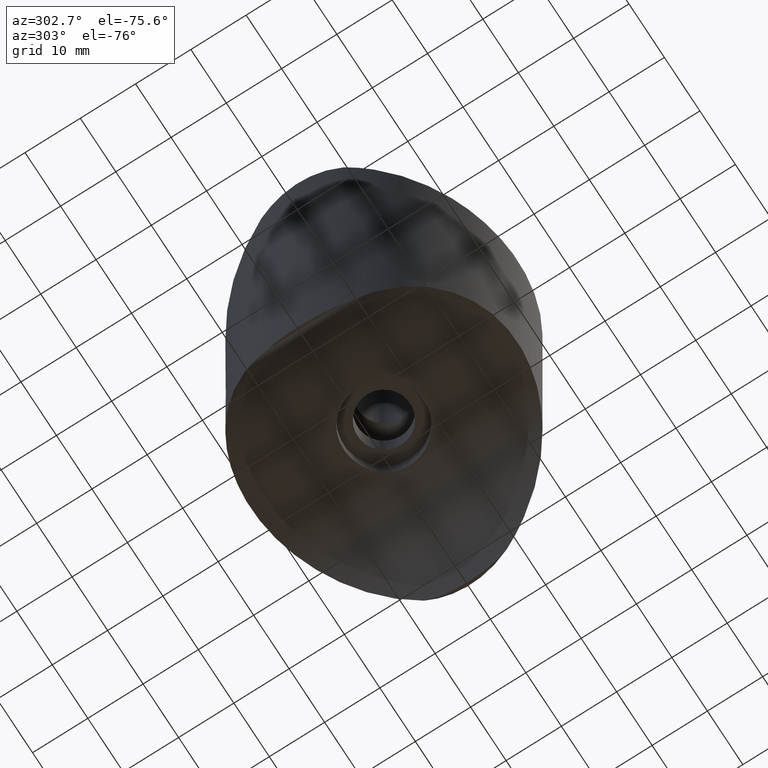
[diagram: clean part render]
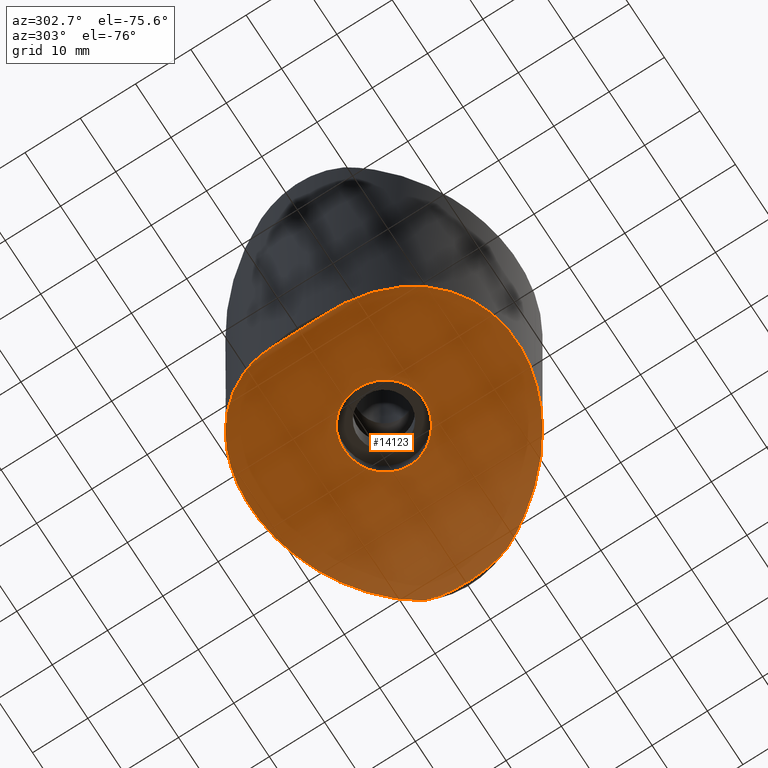
[diagram: same view with one face highlighted and labeled with its STEP entity id]
A machine part, auxiliary view. The second image highlights one B-rep face of the part: STEP entity #14123.
In plain terms, the highlighted cylindrical surface (partial cylindrical patch) has radius 24.15 mm, axis along (0, -1, 0).
Its self-contained STEP definition (entity closure, byte-faithful):
#17 = CARTESIAN_POINT ( 'NONE',  ( 23.58333329076965867, -1.342710219142416728, 43.94811276142461764 ) ) ;
#66 = CARTESIAN_POINT ( 'NONE',  ( 23.40625775316083690, 4.566365360697881570, 43.19922918509129772 ) ) ;
#117 = CARTESIAN_POINT ( 'NONE',  ( 22.95588159927646643, -7.500000000000003553, 41.64999999999992042 ) ) ;
#178 = CARTESIAN_POINT ( 'NONE',  ( 4.430535015015576228, -5.758457711840875071, 25.40649481286317268 ) ) ;
#318 = CARTESIAN_POINT ( 'NONE',  ( 7.202421268336046012, -0.9553088186341823773, 26.09881600218519537 ) ) ;
#330 = CARTESIAN_POINT ( 'NONE',  ( 22.95588159927646643, 7.499999999999992895, 41.64999999999992042 ) ) ;
#335 = CARTESIAN_POINT ( 'NONE',  ( -23.07944902034609314, 6.955721682396822203, 42.02821321168020319 ) ) ;
#358 = CARTESIAN_POINT ( 'NONE',  ( -6.512588624488569344, -3.220621262753788905, 25.89393799316449574 ) ) ;
#399 = CARTESIAN_POINT ( 'NONE',  ( -7.190937394407026062, -0.9539719690186876377, 26.09542276474027744 ) ) ;
#421 = CARTESIAN_POINT ( 'NONE',  ( -23.50396153903346175, -3.295082903082596992, 43.59767010430701362 ) ) ;
#430 =( BOUNDED_CURVE ( )  B_SPLINE_CURVE ( 3, ( #9664, #899, #3066, #3152 ),
 .UNSPECIFIED., .F., .T. ) 
 B_SPLINE_CURVE_WITH_KNOTS ( ( 4, 4 ),
 ( 5.028170040954742959, 7.538200573404429505 ),
 .UNSPECIFIED. ) 
 CURVE ( )  GEOMETRIC_REPRESENTATION_ITEM ( )  RATIONAL_B_SPLINE_CURVE ( ( 1.000000000000000000, 0.5403726708074536589, 0.5403726708074536589, 1.000000000000000000 ) ) 
 REPRESENTATION_ITEM ( '' )  );
#461 = CARTESIAN_POINT ( 'NONE',  ( -0.9548036046264891663, -7.202553625920775637, 25.01436544652682059 ) ) ;
#507 = CARTESIAN_POINT ( 'NONE',  ( -6.514537617548416648, 3.216706062516767606, 25.89448552507773371 ) ) ;
#549 = CARTESIAN_POINT ( 'NONE',  ( -6.287189625676639082, 3.640949459774325714, 25.83118226600541689 ) ) ;
#552 = FACE_BOUND ( 'NONE', #778, .T. ) ;
#778 = EDGE_LOOP ( 'NONE', ( #11084 ) ) ;
#899 = CARTESIAN_POINT ( 'NONE',  ( -14.16052466468775606, 34.42068965517238865, 14.72931034482758328 ) ) ;
#1056 = CARTESIAN_POINT ( 'NONE',  ( -22.95588159927646643, -7.500000000000004441, 41.64999999999990621 ) ) ;
#1107 = CARTESIAN_POINT ( 'NONE',  ( 23.59454307295505160, 0.3254296317553684870, 44.00023910845311548 ) ) ;
#1201 = CARTESIAN_POINT ( 'NONE',  ( 23.53819279198610204, 2.648538919427390947, 43.74753363082991342 ) ) ;
#1215 = CARTESIAN_POINT ( 'NONE',  ( 7.250000000000000000, -0.4819777699687035066, 26.11394130932981739 ) ) ;
#1271 = CARTESIAN_POINT ( 'NONE',  ( 7.063023397359136091, -1.653011571266927326, 26.05587597579672021 ) ) ;
#1397 = CARTESIAN_POINT ( 'NONE',  ( 6.511077239207353706, -3.223923639002036268, 25.89350832831127747 ) ) ;
#1413 = AXIS2_PLACEMENT_3D ( 'NONE', #4754, #6969, #10517 ) ;
#1455 = CARTESIAN_POINT ( 'NONE',  ( -0.4825929110061852878, 7.237878246713412622, 25.00364694169958923 ) ) ;
#1471 = CARTESIAN_POINT ( 'NONE',  ( -23.59454307295504805, -0.3254296317553753148, 44.00023910845312258 ) ) ;
#1504 = CARTESIAN_POINT ( 'NONE',  ( 2.567971062528672022, -6.784076747656212270, 25.13591835332825752 ) ) ;
#1555 = CARTESIAN_POINT ( 'NONE',  ( -3.635229885871468447, -6.277233158966987858, 25.27423761599827756 ) ) ;
#1596 = CARTESIAN_POINT ( 'NONE',  ( 0.4807107271748687904, -7.249688256254142260, 25.00009358764886613 ) ) ;
#1650 = CARTESIAN_POINT ( 'NONE',  ( -6.875825524705429181, -2.347176018906343309, 25.99873104965076820 ) ) ;
#1925 = VERTEX_POINT ( 'NONE', #330 ) ;
#2313 = CARTESIAN_POINT ( 'NONE',  ( 22.95588159927646643, 7.499999999999992895, 41.64999999999992042 ) ) ;
#2331 = CARTESIAN_POINT ( 'NONE',  ( 6.866026250664985398, -2.340340431499605245, 25.99648069941249062 ) ) ;
#2414 = CARTESIAN_POINT ( 'NONE',  ( 7.250000000000000000, -2.439454888092384977E-16, 26.11394130932981383 ) ) ;
#2514 = CARTESIAN_POINT ( 'NONE',  ( 6.288279808588537634, -3.639174042621823091, 25.83147146888209633 ) ) ;
#2518 = EDGE_CURVE ( 'NONE', #3519, #11816, #6309, .T. ) ;
#2562 = CARTESIAN_POINT ( 'NONE',  ( 0.9484403245173415042, 7.203466903221690920, 25.01409243754145706 ) ) ;
#2576 = CARTESIAN_POINT ( 'NONE',  ( -22.95588159927646643, -7.500000000000004441, 41.64999999999990621 ) ) ;
#2603 = CARTESIAN_POINT ( 'NONE',  ( -1.891178497224035526, 7.015027855281247504, 25.06966207377710631 ) ) ;
#2664 = CARTESIAN_POINT ( 'NONE',  ( -4.785424623598828475, 5.451431822611119138, 25.47814250926537483 ) ) ;
#2684 = CARTESIAN_POINT ( 'NONE',  ( -23.49949931771601896, 3.305007554286290894, 43.58204950070740580 ) ) ;
#2715 = CARTESIAN_POINT ( 'NONE',  ( -1.194082458193149510, 7.154916845269344350, 25.02841527240796893 ) ) ;
#2760 = CARTESIAN_POINT ( 'NONE',  ( -3.001560036107230989, -6.603793025683310169, 25.18622827745657489 ) ) ;
#2809 = CARTESIAN_POINT ( 'NONE',  ( 7.202398825524176651, 0.9560683961244266227, 26.09880741137586568 ) ) ;
#3066 = CARTESIAN_POINT ( 'NONE',  ( 14.16052466468774718, 34.42068965517238865, 14.72931034482759038 ) ) ;
#3152 = CARTESIAN_POINT ( 'NONE',  ( 22.95588159927646643, 7.499999999999992895, 41.64999999999992042 ) ) ;
#3325 = CARTESIAN_POINT ( 'NONE',  ( 23.58059663413400386, 1.331354551583074253, 43.93668628495053952 ) ) ;
#3374 = ORIENTED_EDGE ( 'NONE', *, *, #2518, .T. ) ;
#3519 = VERTEX_POINT ( 'NONE', #8809 ) ;
#3639 = CARTESIAN_POINT ( 'NONE',  ( -23.34095896364554079, 5.203425376635857802, 42.94409360062363845 ) ) ;
#3673 = CARTESIAN_POINT ( 'NONE',  ( 4.792431585243522640, 5.460403369030796483, 25.47784684677939637 ) ) ;
#3729 = CARTESIAN_POINT ( 'NONE',  ( 5.750336783304169863, 4.421788825645389664, 25.69408307455895013 ) ) ;
#3780 = CARTESIAN_POINT ( 'NONE',  ( 0.9530173313449559203, -7.202959378916133026, 25.01424629614222539 ) ) ;
#3794 = CARTESIAN_POINT ( 'NONE',  ( -23.59438424472909901, 0.6794122471350264592, 43.99951144466633224 ) ) ;
#3819 = CARTESIAN_POINT ( 'NONE',  ( -0.2409192066514672104, 7.249934597112835277, 25.00001963440638164 ) ) ;
#3872 = CARTESIAN_POINT ( 'NONE',  ( -4.420085787299019131, 5.751629280268367062, 25.40721230515017126 ) ) ;
#4496 = CARTESIAN_POINT ( 'NONE',  ( 23.50396153903347241, 3.295082903082588111, 43.59767010430701362 ) ) ;
#4739 = CARTESIAN_POINT ( 'NONE',  ( 5.893845718678315748, -4.228589636074417513, 25.72984806632681654 ) ) ;
#4754 = CARTESIAN_POINT ( 'NONE',  ( 0.000000000000000000, -24.14999999999999858, 49.14999999999991331 ) ) ;
#4760 = CARTESIAN_POINT ( 'NONE',  ( -23.40425869456801422, 4.588300385915863977, 43.19129710098010122 ) ) ;
#4790 = CARTESIAN_POINT ( 'NONE',  ( -4.783167365172773522, -5.453412311661145928, 25.47768585661125229 ) ) ;
#4836 = CARTESIAN_POINT ( 'NONE',  ( 0.4759095739806273873, 7.250129997702255302, 24.99996097377592719 ) ) ;
#4883 = CARTESIAN_POINT ( 'NONE',  ( -7.015941670273369013, 1.889294121607459465, 26.04137131818994177 ) ) ;
#4904 = CARTESIAN_POINT ( 'NONE',  ( -23.57219652307005475, -1.662667037416008853, 43.89864619612763619 ) ) ;
#4939 = CARTESIAN_POINT ( 'NONE',  ( 3.219168441476830456, 6.513313868482390134, 25.21147741431782308 ) ) ;
#4987 = CARTESIAN_POINT ( 'NONE',  ( -4.417710530253415868, -5.753453706698206105, 25.40676979395126622 ) ) ;
#5514 = CARTESIAN_POINT ( 'NONE',  ( 23.40425869456801777, -4.588300385915871971, 43.19129710098010833 ) ) ;
#5551 = CARTESIAN_POINT ( 'NONE',  ( 23.53485153924235718, -2.654742722643820496, 43.73342322386821479 ) ) ;
#5607 = CARTESIAN_POINT ( 'NONE',  ( 23.57219652307005120, 1.662667037416001525, 43.89864619612764329 ) ) ;
#5666 = CARTESIAN_POINT ( 'NONE',  ( 5.450528033875959188, -4.786478692552381453, 25.62260825477079607 ) ) ;
#5676 = VERTEX_POINT ( 'NONE', #9301 ) ;
#5697 = CARTESIAN_POINT ( 'NONE',  ( 23.49949931771602607, -3.305007554286295779, 43.58204950070740580 ) ) ;
#5731 =( BOUNDED_CURVE ( )  B_SPLINE_CURVE ( 3, ( #13941, #13034, #7653, #1056 ),
 .UNSPECIFIED., .F., .T. ) 
 B_SPLINE_CURVE_WITH_KNOTS ( ( 4, 4 ),
 ( 5.028170040954742959, 7.538200573404429505 ),
 .UNSPECIFIED. ) 
 CURVE ( )  GEOMETRIC_REPRESENTATION_ITEM ( )  RATIONAL_B_SPLINE_CURVE ( ( 1.000000000000000000, 0.5403726708074536589, 0.5403726708074536589, 1.000000000000000000 ) ) 
 REPRESENTATION_ITEM ( '' )  );
#5850 = CARTESIAN_POINT ( 'NONE',  ( -7.249897003482068669, -0.2405618492822055587, 26.11390889385934955 ) ) ;
#5892 = CARTESIAN_POINT ( 'NONE',  ( -3.217946500129021281, -6.501028593805384226, 25.21442509437571644 ) ) ;
#5947 = CARTESIAN_POINT ( 'NONE',  ( 5.892937365032689279, 4.229858171171280823, 25.72961908978066603 ) ) ;
#5968 = CARTESIAN_POINT ( 'NONE',  ( -23.53819279198608783, -2.648538919427400717, 43.74753363082990631 ) ) ;
#5999 = CARTESIAN_POINT ( 'NONE',  ( -7.203772017884855217, 0.9479127137863905261, 26.09923372664603036 ) ) ;
#6045 = CARTESIAN_POINT ( 'NONE',  ( -3.837279822448169675, -6.155745072440452326, 25.30598296000923852 ) ) ;
#6063 = CARTESIAN_POINT ( 'NONE',  ( -23.54919858853801173, 2.327953500225913075, 43.79645623682832678 ) ) ;
#6146 = CARTESIAN_POINT ( 'NONE',  ( 7.250000000000000000, 0.4819777699686995653, 26.11394130932981028 ) ) ;
#6309 = B_SPLINE_CURVE_WITH_KNOTS ( 'NONE', 3,
 ( #10330, #335, #11328, #3639, #4760, #7023, #2684, #6925, #6063, #8065, #3794, #1471, #11424, #11475, #4904, #5968, #421, #12626, #7113, #9194, #10233, #2576 ),
 .UNSPECIFIED., .F., .F.,
 ( 4, 2, 2, 2, 2, 2, 2, 2, 2, 2, 4 ),
 ( 1.044441840201302536E-17, 0.001993106903680222797, 0.003986213807360435186, 0.004982767259200541164, 0.005979320711040648009, 0.007972427614720859965, 0.008968981066560965942, 0.009965534518401071920, 0.01195864142208128734, 0.01395174832576150450, 0.01594485522944171993 ),
 .UNSPECIFIED. ) ;
#6710 = CARTESIAN_POINT ( 'NONE',  ( 23.17853233189731910, -6.387139284601380140, 42.36256465816462224 ) ) ;
#6769 = CARTESIAN_POINT ( 'NONE',  ( 4.793714833284053789, -5.459267129612251246, 25.47810887501599098 ) ) ;
#6809 = CARTESIAN_POINT ( 'NONE',  ( 23.59438424472909190, -0.6794122471350315662, 43.99951144466631803 ) ) ;
#6925 = CARTESIAN_POINT ( 'NONE',  ( -23.53485153924234297, 2.654742722643814723, 43.73342322386820058 ) ) ;
#6956 = CARTESIAN_POINT ( 'NONE',  ( -4.228520255933796435, -5.893855298342534077, 25.37224818271720039 ) ) ;
#6969 = DIRECTION ( 'NONE',  ( 0.000000000000000000, 1.000000000000000000, 0.000000000000000000 ) ) ;
#7005 = CARTESIAN_POINT ( 'NONE',  ( -6.284815106235166482, -3.644957662798241405, 25.83054428248389911 ) ) ;
#7023 = CARTESIAN_POINT ( 'NONE',  ( -23.47838276607514629, 3.629853885291828064, 43.49325323088182671 ) ) ;
#7050 = CARTESIAN_POINT ( 'NONE',  ( -4.962435920999243244, 5.290811488851245414, 25.51472985797487780 ) ) ;
#7095 = CARTESIAN_POINT ( 'NONE',  ( -2.340435523965494369, -6.878418529272460447, 25.10958126736854013 ) ) ;
#7097 = CYLINDRICAL_SURFACE ( 'NONE', #1413, 24.14999999999996305 ) ;
#7113 = CARTESIAN_POINT ( 'NONE',  ( -23.34223474764486994, -5.193047090726338411, 42.94880742668343032 ) ) ;
#7146 = CARTESIAN_POINT ( 'NONE',  ( -4.231050712837525651, 5.892028891758611664, 25.37270058855551014 ) ) ;
#7196 = CARTESIAN_POINT ( 'NONE',  ( 7.015820218399770880, 1.888619147174180668, 26.04133722469330792 ) ) ;
#7236 = CARTESIAN_POINT ( 'NONE',  ( 6.874400171282863958, 2.351453121312654382, 25.99830351633707437 ) ) ;
#7653 = CARTESIAN_POINT ( 'NONE',  ( -14.16052466468774718, -34.42068965517239576, 14.72931034482759038 ) ) ;
#7707 = CARTESIAN_POINT ( 'NONE',  ( 23.07944902034609669, -6.955721682396822203, 42.02821321168022450 ) ) ;
#7711 = EDGE_CURVE ( 'NONE', #5676, #1925, #8438, .T. ) ;
#7803 = CARTESIAN_POINT ( 'NONE',  ( 23.59177974707781544, 0.6632460867595895149, 43.98752909174065451 ) ) ;
#8001 = CARTESIAN_POINT ( 'NONE',  ( 7.005132268049746536, -1.883515786305131945, 26.03818712466226515 ) ) ;
#8043 = CARTESIAN_POINT ( 'NONE',  ( -2.344622196554733140, 6.877094153063542770, 25.10996664923453991 ) ) ;
#8065 = CARTESIAN_POINT ( 'NONE',  ( -23.58333329076966933, 1.342710219142410955, 43.94811276142463186 ) ) ;
#8095 = CARTESIAN_POINT ( 'NONE',  ( 2.340393982012677565, 6.866020510362850438, 25.11257522175128187 ) ) ;
#8147 = CARTESIAN_POINT ( 'NONE',  ( -3.228525279233149803, 6.509093773792971938, 25.21264255871492566 ) ) ;
#8206 = CARTESIAN_POINT ( 'NONE',  ( -5.463935351666973084, 4.788709261913873583, 25.62373870971198997 ) ) ;
#8258 = CARTESIAN_POINT ( 'NONE',  ( 3.635904837538693091, 6.290488802313171313, 25.27188523307743395 ) ) ;
#8438 = B_SPLINE_CURVE_WITH_KNOTS ( 'NONE', 3,
 ( #117, #7707, #6710, #12117, #5514, #9928, #5697, #5551, #13222, #17, #6809, #1107, #7803, #3325, #5607, #1201, #4496, #66, #9975, #12165, #8935, #2313 ),
 .UNSPECIFIED., .F., .F.,
 ( 4, 2, 2, 2, 2, 2, 2, 2, 2, 2, 4 ),
 ( 6.071532165918824830E-18, 0.001993106903680219328, 0.003986213807360432584, 0.004982767259200537695, 0.005979320711040641938, 0.007972427614720851291, 0.008968981066560955534, 0.009965534518401059777, 0.01195864142208127173, 0.01395174832576148369, 0.01594485522944169564 ),
 .UNSPECIFIED. ) ;
#8726 = EDGE_CURVE ( 'NONE', #13787, #13787, #13837, .T. ) ;
#8779 = ORIENTED_EDGE ( 'NONE', *, *, #10758, .F. ) ;
#8809 = CARTESIAN_POINT ( 'NONE',  ( -22.95588159927646643, 7.499999999999992895, 41.64999999999992042 ) ) ;
#8935 = CARTESIAN_POINT ( 'NONE',  ( 23.07943559808701295, 6.955780803518929467, 42.02817212904151489 ) ) ;
#8994 = CARTESIAN_POINT ( 'NONE',  ( 3.638877831533077423, -6.288723548186536227, 25.27234837304871107 ) ) ;
#9171 = CARTESIAN_POINT ( 'NONE',  ( 5.291107627380776002, 4.962046597767259648, 25.58613754225192949 ) ) ;
#9194 = CARTESIAN_POINT ( 'NONE',  ( -23.17893035629539256, -6.385308370221885355, 42.36384498530100018 ) ) ;
#9225 = CARTESIAN_POINT ( 'NONE',  ( -5.762065438270877138, 4.425366452954059504, 25.69590407230412410 ) ) ;
#9272 = CARTESIAN_POINT ( 'NONE',  ( 1.882875519516441054, 7.005316653640304203, 25.07241677952266556 ) ) ;
#9301 = CARTESIAN_POINT ( 'NONE',  ( 22.95588159927646643, -7.500000000000003553, 41.64999999999992042 ) ) ;
#9318 = CARTESIAN_POINT ( 'NONE',  ( -3.645004378345037654, 6.284713316097249702, 25.27336973469327219 ) ) ;
#9363 = CARTESIAN_POINT ( 'NONE',  ( 2.345293780030222042, -6.864311368676270675, 25.11306306487142592 ) ) ;
#9420 = CARTESIAN_POINT ( 'NONE',  ( 6.510153906180983441, 3.225617090496231132, 25.89325207806515650 ) ) ;
#9508 = FACE_OUTER_BOUND ( 'NONE', #10260, .T. ) ;
#9664 = CARTESIAN_POINT ( 'NONE',  ( -22.95588159927646643, 7.499999999999992895, 41.64999999999992042 ) ) ;
#9928 = CARTESIAN_POINT ( 'NONE',  ( 23.47838276607514274, -3.629853885291836946, 43.49325323088181960 ) ) ;
#9975 = CARTESIAN_POINT ( 'NONE',  ( 23.34223474764486994, 5.193047090726327752, 42.94880742668341611 ) ) ;
#10036 = CARTESIAN_POINT ( 'NONE',  ( 6.784652654092800717, -2.566576703426470374, 25.97242471081417392 ) ) ;
#10199 = ORIENTED_EDGE ( 'NONE', *, *, #11292, .F. ) ;
#10233 = CARTESIAN_POINT ( 'NONE',  ( -23.07943559808701650, -6.955780803518926803, 42.02817212904152910 ) ) ;
#10260 = EDGE_LOOP ( 'NONE', ( #10199, #11055, #8779, #3374 ) ) ;
#10267 = CARTESIAN_POINT ( 'NONE',  ( -7.238159395298985110, -0.4782172060890964582, 26.11020484737152358 ) ) ;
#10317 = CARTESIAN_POINT ( 'NONE',  ( 5.449496473532432717, 4.787648454615376359, 25.62236943252527865 ) ) ;
#10330 = CARTESIAN_POINT ( 'NONE',  ( -22.95588159927646643, 7.499999999999992895, 41.64999999999992042 ) ) ;
#10355 = CARTESIAN_POINT ( 'NONE',  ( -5.461977603441234841, -4.790947819237310057, 25.62328152599148723 ) ) ;
#10413 = CARTESIAN_POINT ( 'NONE',  ( -0.9588759266909271384, 7.190294457754374591, 25.01786750220651712 ) ) ;
#10462 = CARTESIAN_POINT ( 'NONE',  ( -1.887006463236362341, -7.016240821506660730, 25.06930831911341429 ) ) ;
#10517 = DIRECTION ( 'NONE',  ( 0.000000000000000000, 0.000000000000000000, 1.000000000000000000 ) ) ;
#10758 = EDGE_CURVE ( 'NONE', #3519, #1925, #430, .T. ) ;
#11055 = ORIENTED_EDGE ( 'NONE', *, *, #7711, .T. ) ;
#11084 = ORIENTED_EDGE ( 'NONE', *, *, #8726, .T. ) ;
#11292 = EDGE_CURVE ( 'NONE', #5676, #11816, #5731, .T. ) ;
#11328 = CARTESIAN_POINT ( 'NONE',  ( -23.17853233189732620, 6.387139284601377476, 42.36256465816462224 ) ) ;
#11353 = CARTESIAN_POINT ( 'NONE',  ( 1.655916322836515020, -7.062402749334218299, 25.05569510540824041 ) ) ;
#11405 = CARTESIAN_POINT ( 'NONE',  ( -7.155131508516591410, -1.193129468298080420, 26.08424595322784256 ) ) ;
#11424 = CARTESIAN_POINT ( 'NONE',  ( -23.59177974707781544, -0.6632460867595972864, 43.98752909174065451 ) ) ;
#11455 = CARTESIAN_POINT ( 'NONE',  ( -0.4712609527894532357, -7.250308664496026623, 24.99990733676336419 ) ) ;
#11475 = CARTESIAN_POINT ( 'NONE',  ( -23.58059663413400742, -1.331354551583082912, 43.93668628495053241 ) ) ;
#11506 = CARTESIAN_POINT ( 'NONE',  ( 1.649311365242462246, 7.063923530108977111, 25.05524869917385189 ) ) ;
#11538 = CARTESIAN_POINT ( 'NONE',  ( 2.563886665923558184, 6.785641894124001539, 25.13547653139343296 ) ) ;
#11816 = VERTEX_POINT ( 'NONE', #14220 ) ;
#12117 = CARTESIAN_POINT ( 'NONE',  ( 23.34095896364553724, -5.203425376635859578, 42.94409360062364556 ) ) ;
#12128 = CARTESIAN_POINT ( 'NONE',  ( 7.250000000000000000, 0.000000000000000000, 26.11394130932980673 ) ) ;
#12165 = CARTESIAN_POINT ( 'NONE',  ( 23.17893035629539966, 6.385308370221875585, 42.36384498530102860 ) ) ;
#12320 = CARTESIAN_POINT ( 'NONE',  ( 5.751404433098318059, -4.420405091081891058, 25.69434470690524464 ) ) ;
#12451 = CARTESIAN_POINT ( 'NONE',  ( -5.760028374301390919, -4.427944264599118718, 25.69540580167717536 ) ) ;
#12506 = CARTESIAN_POINT ( 'NONE',  ( -7.014186066537646980, -1.895139349267401352, 26.04083817129248857 ) ) ;
#12554 = CARTESIAN_POINT ( 'NONE',  ( -6.877376070853801870, 2.342668701104161144, 25.99919327012945658 ) ) ;
#12602 = CARTESIAN_POINT ( 'NONE',  ( 1.889932500870390664, -7.003379799992325516, 25.07297993355176757 ) ) ;
#12626 = CARTESIAN_POINT ( 'NONE',  ( -23.40625775316082624, -4.566365360697895781, 43.19922918509129772 ) ) ;
#12658 = CARTESIAN_POINT ( 'NONE',  ( 7.250000000000000000, -2.439454888092384977E-16, 26.11394130932981383 ) ) ;
#13034 = CARTESIAN_POINT ( 'NONE',  ( 14.16052466468775606, -34.42068965517239576, 14.72931034482758328 ) ) ;
#13222 = CARTESIAN_POINT ( 'NONE',  ( 23.54919858853801529, -2.327953500225917960, 43.79645623682832678 ) ) ;
#13340 = CARTESIAN_POINT ( 'NONE',  ( 5.292161427922056127, -4.960920004862209076, 25.58637474294749481 ) ) ;
#13528 = CARTESIAN_POINT ( 'NONE',  ( 4.428777119038286969, 5.759859945306616602, 25.40615654448828664 ) ) ;
#13574 = CARTESIAN_POINT ( 'NONE',  ( 3.221480690049995932, -6.512085145936922004, 25.21181015599492170 ) ) ;
#13620 = CARTESIAN_POINT ( 'NONE',  ( 6.287576360483353000, 3.640402073505394132, 25.83128016843685160 ) ) ;
#13672 = CARTESIAN_POINT ( 'NONE',  ( -7.250203973369101718, 0.4717505720782086964, 26.11400550463308434 ) ) ;
#13717 = CARTESIAN_POINT ( 'NONE',  ( -4.960207737149439744, -5.292901783625874934, 25.51426149708323976 ) ) ;
#13787 = VERTEX_POINT ( 'NONE', #12128 ) ;
#13837 = B_SPLINE_CURVE_WITH_KNOTS ( 'NONE', 3,
 ( #2414, #1215, #318, #1271, #8001, #2331, #10036, #1397, #2514, #4739, #12320, #5666, #13340, #6769, #178, #8994, #13574, #1504, #9363, #12602, #11353, #3780, #1596, #11455, #461, #10462, #7095, #2760, #5892, #1555, #6045, #6956, #4987, #4790, #13717, #10355, #12451, #7005, #358, #1650, #12506, #11405, #399, #10267, #5850, #13672, #5999, #4883, #12554, #507, #549, #9225, #8206, #7050, #2664, #3872, #7146, #9318, #8147, #8043, #2603, #2715, #10413, #1455, #3819, #4836, #2562, #11506, #9272, #8095, #11538, #4939, #8258, #13528, #3673, #9171, #10317, #3729, #5947, #13620, #9420, #7236, #7196, #2809, #6146, #12658 ),
 .UNSPECIFIED., .T., .F.,
 ( 4, 2, 2, 2, 2, 2, 2, 2, 2, 2, 2, 2, 2, 2, 2, 2, 2, 2, 2, 2, 2, 2, 2, 2, 2, 2, 2, 2, 2, 2, 2, 2, 2, 2, 2, 2, 2, 2, 2, 2, 2, 2, 4 ),
 ( 0.000000000000000000, 0.001424720433073834152, 0.002137080649610751011, 0.002849440866147667870, 0.004274161299221504624, 0.004986521515758423652, 0.005698881732295343547, 0.007123602165369184204, 0.008548322598443023126, 0.009260682814979942154, 0.009973043031516859447, 0.01139776346459069750, 0.01282248389766453209, 0.01424720433073837014, 0.01495956454727528917, 0.01567192476381220820, 0.01638428498034912723, 0.01709664519688604625, 0.01852136562995987737, 0.01994608606303370849, 0.02137080649610754307, 0.02208316671264445863, 0.02279552692918137419, 0.02422024736225520530, 0.02564496779532903989, 0.02706968822840287794, 0.02849440866147671253, 0.02920676887801362809, 0.02991912909455054365, 0.03134384952762437476, 0.03276856996069819894, 0.03348093017723511450, 0.03419329039377203699, 0.03561801082684586811, 0.03633037104338278367, 0.03704273125991969923, 0.03846745169299353034, 0.03989217212606735452, 0.04060453234260427008, 0.04131689255914117870, 0.04274161299221501675, 0.04416633342528884093, 0.04559105385836266511 ),
 .UNSPECIFIED. ) ;
#13941 = CARTESIAN_POINT ( 'NONE',  ( 22.95588159927646643, -7.500000000000003553, 41.64999999999992042 ) ) ;
#14123 = ADVANCED_FACE ( 'NONE', ( #552, #9508 ), #7097, .F. ) ;
#14220 = CARTESIAN_POINT ( 'NONE',  ( -22.95588159927646643, -7.500000000000004441, 41.64999999999990621 ) ) ;